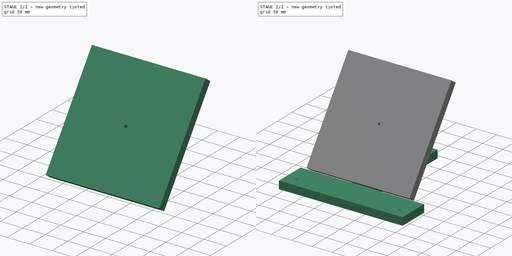
[diagram: build sequence overview — one tinted view per stage of 2, left to right]
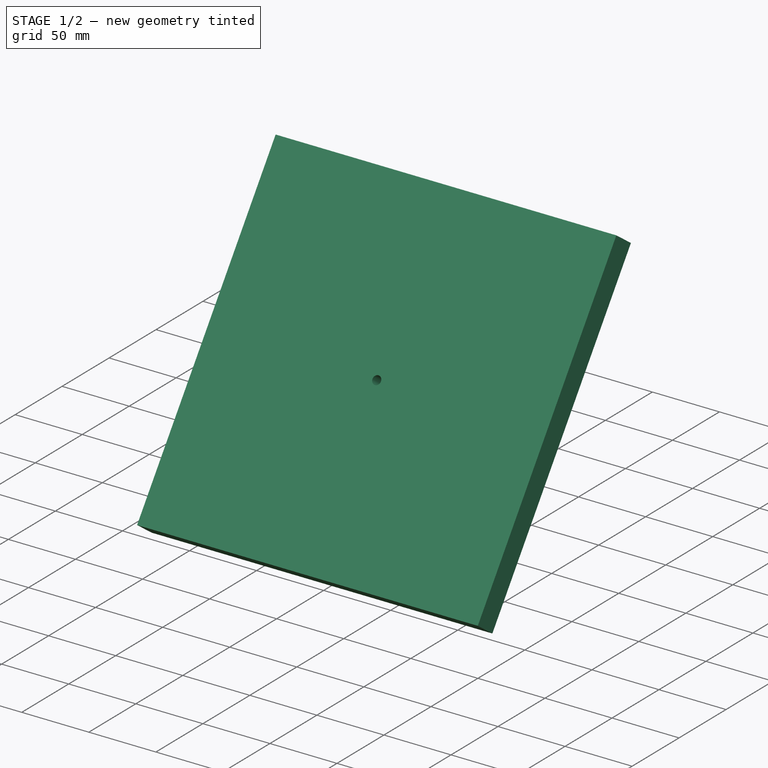
[diagram: stage 1 of 2 — iso view after this stage's code; geometry added in this stage tinted green]
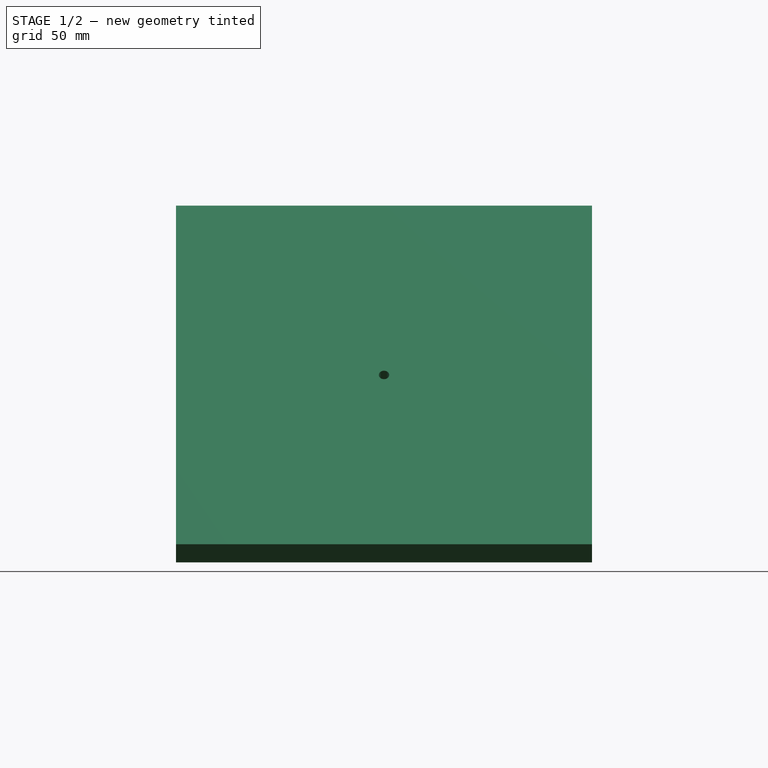
[diagram: stage 1 of 2 — front view after this stage's code; geometry added in this stage tinted green]
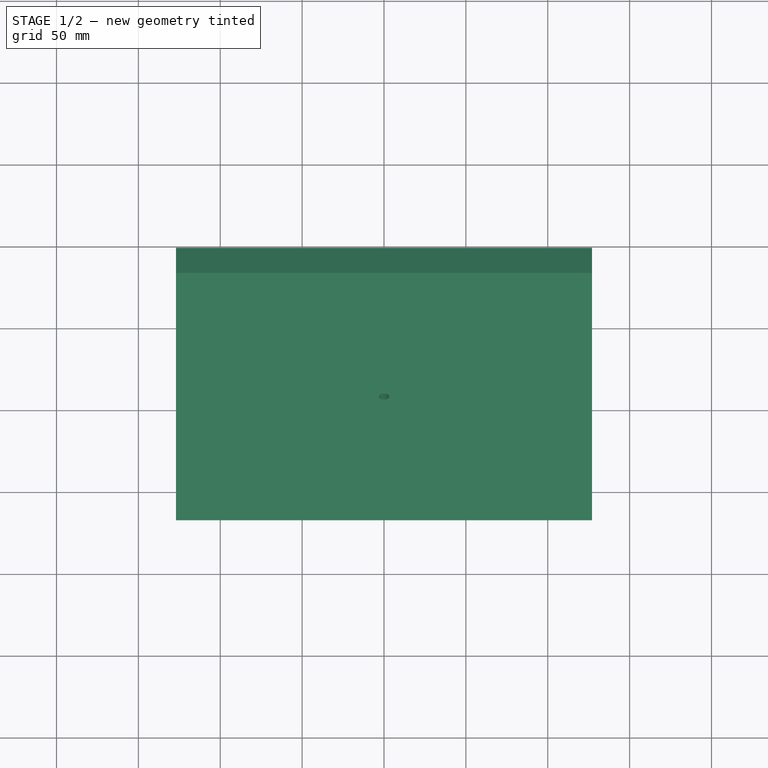
[diagram: stage 1 of 2 — top view after this stage's code; geometry added in this stage tinted green]
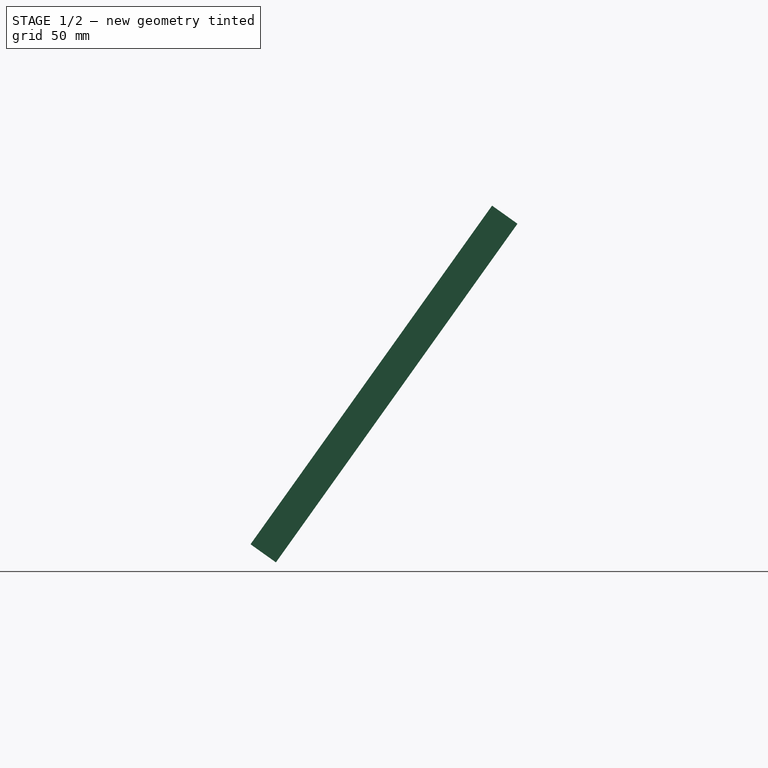
[diagram: stage 1 of 2 — right view after this stage's code; geometry added in this stage tinted green]
FCSTD DOCUMENT  (FreeCAD 0.19R24291 (Git))
Label: PST_BaseAdj
License: All rights reserved
LicenseURL: http://en.wikipedia.org/wiki/All_rights_reserved
objects: Sketcher::SketchObject×4, PartDesign::Pad×2, PartDesign::Body×2, PartDesign::Pocket×2
note: 14 computed .brp shape members not serialized (recipe doc carries the construction recipe); baked Part::Feature solids carry a one-line shape summary decoded from their .brp

FEATURE [Sketcher::SketchObject] Sketch
  AttachmentOffset = pos=(0,-27.94,104.14) rot=(1,0,0;0.951204rad)
  FullyConstrained = true
  MapMode = 5
  Placement = pos=(0,-27.94,104.14) rot=(1,0,0;0.951204rad)
  Support = -> [XY_Plane]
  sketch-geometry (4):
    g0: LineSegment StartX=-127 StartY=127 StartZ=0 EndX=127 EndY=127 EndZ=0
    g1: LineSegment StartX=127 StartY=127 StartZ=0 EndX=127 EndY=-127 EndZ=0
    g2: LineSegment StartX=127 StartY=-127 StartZ=0 EndX=-127 EndY=-127 EndZ=0
    g3: LineSegment StartX=-127 StartY=-127 StartZ=0 EndX=-127 EndY=127 EndZ=0
  constraints (11):
    c: Coincident(g0,g1)
    c: Coincident(g1,g2)
    c: Coincident(g2,g3)
    c: Coincident(g3,g0)
    c: Horizontal(g0)
    c: Horizontal(g2)
    c: Vertical(g1)
    c: Vertical(g3)
    c: Symmetric(g0,g1,g-1)
    c: DistanceX(g0,g0) = 254
    c: Equal(g3,g0)
FEATURE [PartDesign::Pad] Pad  label="PadPlatform"
  Direction = (1,1,1)
  Length = 19.05
  Length2 = 99.9998
  Profile = -> Sketch
  Type = 0
FEATURE [PartDesign::Body] Body001  label="BodyFeet"
  Group = -> [Sketch002,Pad001]
  Origin = -> Origin001
  Tip = -> Pad001
FEATURE [Sketcher::SketchObject] Sketch003
  ExternalGeometry = -> [Pad]
  FullyConstrained = true
  MapMode = 5
  Placement = pos=(0,-83.2602,59.389) rot=(1,0,0;0.951204rad)
  Support = -> [Pad]
  sketch-geometry (1):
    g0: Circle CenterX=-4.4e-15 CenterY=68.5571 CenterZ=0 NormalX=0 NormalY=0 NormalZ=1 AngleXU=0 Radius=3.175
  constraints (2):
    c: Symmetric(g-3,g-5,g0)
    c: Diameter(g0) = 6.35
FEATURE [PartDesign::Pocket] Pocket  label="PocketPin"
  BaseFeature = -> Pad
  Length = 5.0038
  Length2 = 99.9998
  Profile = -> Sketch003
  Type = 1
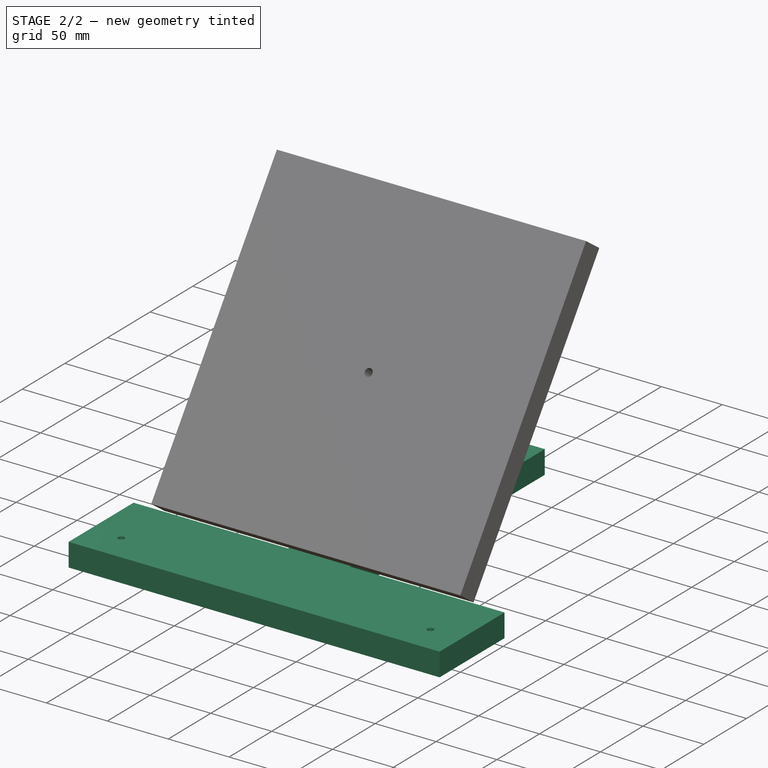
[diagram: stage 2 of 2 — iso view after this stage's code; geometry added in this stage tinted green]
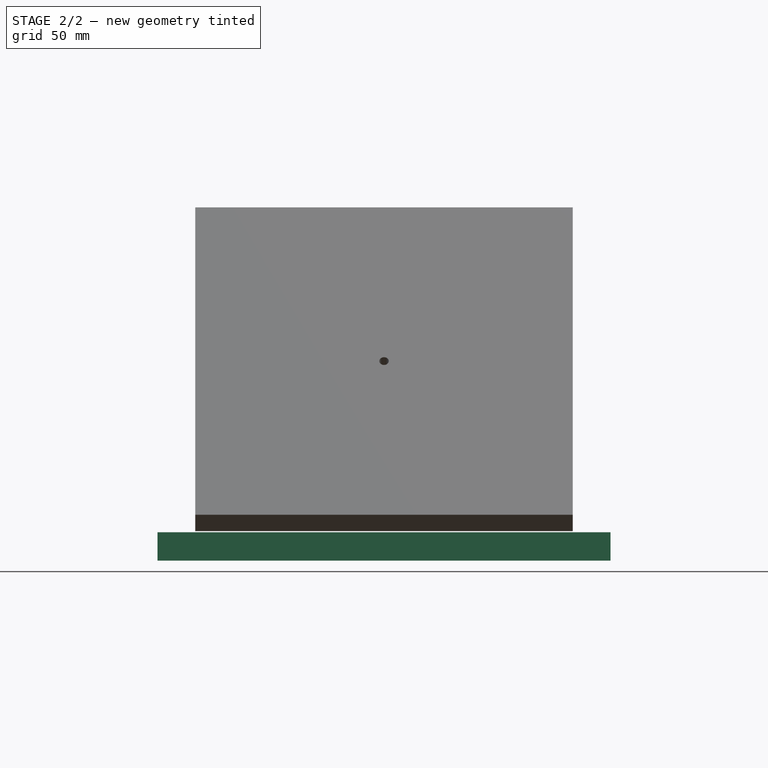
[diagram: stage 2 of 2 — front view after this stage's code; geometry added in this stage tinted green]
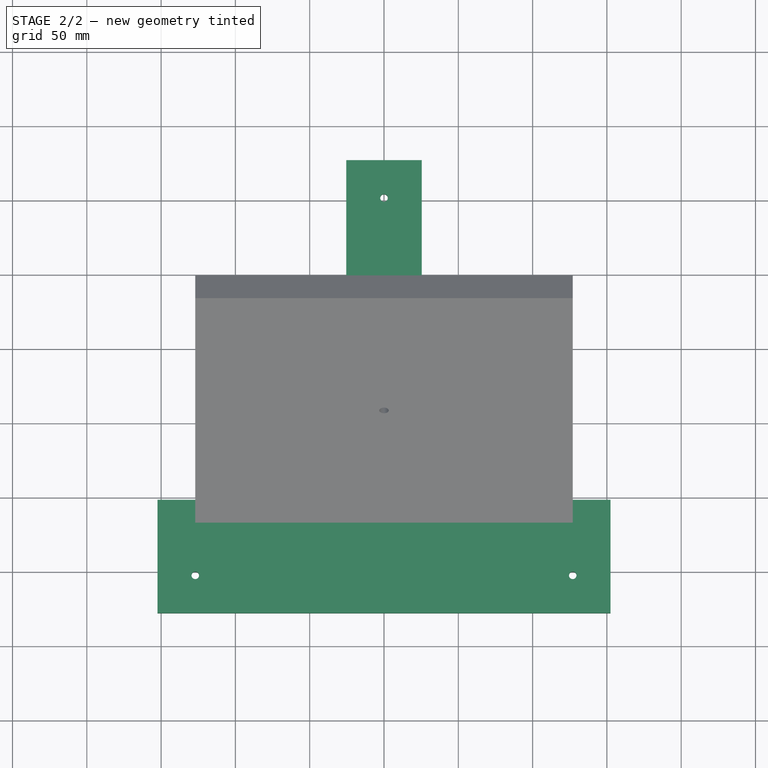
[diagram: stage 2 of 2 — top view after this stage's code; geometry added in this stage tinted green]
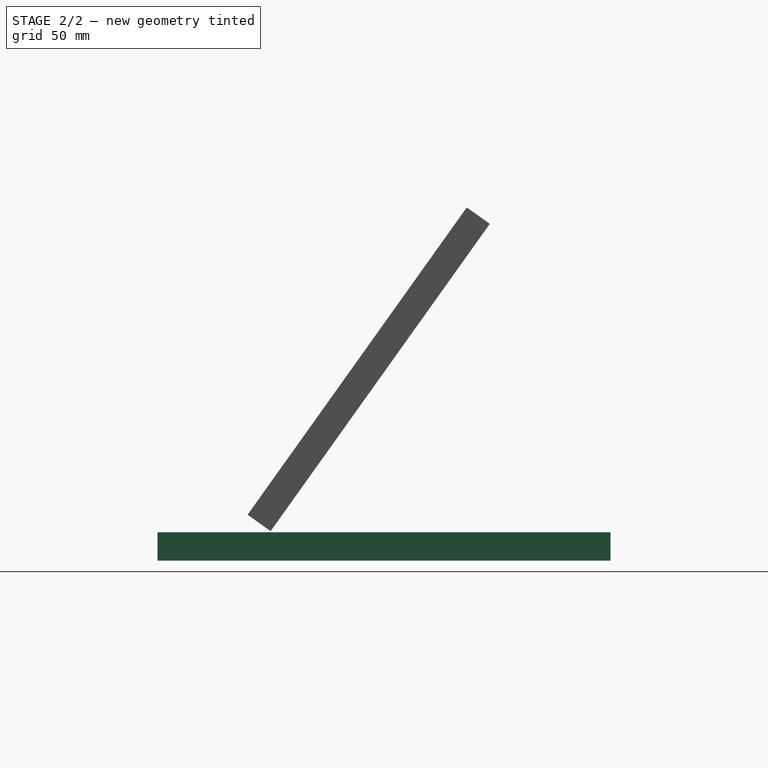
[diagram: stage 2 of 2 — right view after this stage's code; geometry added in this stage tinted green]
FEATURE [Sketcher::SketchObject] Sketch002
  AttachmentOffset = pos=(0,0,-19.05) rot=(0,0,1;0rad)
  FullyConstrained = true
  MapMode = 5
  Placement = pos=(0,0,-19.05) rot=(0,0,1;0rad)
  Support = -> [XY_Plane001]
  sketch-geometry (15):
    g0: LineSegment StartX=-152.4 StartY=-101.6 StartZ=0 EndX=-25.4 EndY=-101.6 EndZ=0
    g1: LineSegment StartX=152.4 StartY=-101.6 StartZ=0 EndX=152.4 EndY=-177.8 EndZ=0
    g2: LineSegment StartX=152.4 StartY=-177.8 StartZ=0 EndX=-152.4 EndY=-177.8 EndZ=0
    g3: LineSegment StartX=-152.4 StartY=-177.8 StartZ=0 EndX=-152.4 EndY=-101.6 EndZ=0
    g4: LineSegment StartX=-152.4 StartY=-177.8 StartZ=0 EndX=152.4 EndY=-177.8 EndZ=0
    g5: LineSegment StartX=152.4 StartY=-177.8 StartZ=0 EndX=152.4 EndY=-101.6 EndZ=0
    g6: LineSegment StartX=152.4 StartY=-101.6 StartZ=0 EndX=25.4 EndY=-101.6 EndZ=0
    g7: LineSegment StartX=25.4 StartY=-101.6 StartZ=0 EndX=25.4 EndY=127 EndZ=0
    g8: LineSegment StartX=25.4 StartY=127 StartZ=0 EndX=-25.4 EndY=127 EndZ=0
    g9: LineSegment StartX=-25.4 StartY=127 StartZ=0 EndX=-25.4 EndY=-101.6 EndZ=0
    g10: LineSegment StartX=-25.4 StartY=-101.6 StartZ=0 EndX=-152.4 EndY=-101.6 EndZ=0
    g11: LineSegment StartX=-152.4 StartY=-101.6 StartZ=0 EndX=-152.4 EndY=-177.8 EndZ=0
    g12: Circle CenterX=-127 CenterY=-152.4 CenterZ=0 NormalX=0 NormalY=0 NormalZ=1 AngleXU=0 Radius=2.5527
    g13: Circle CenterX=127 CenterY=-152.4 CenterZ=0 NormalX=0 NormalY=0 NormalZ=1 AngleXU=0 Radius=2.5527
    g14: Circle CenterX=0 CenterY=101.6 CenterZ=0 NormalX=0 NormalY=0 NormalZ=1 AngleXU=0 Radius=2.5527
  constraints (39):
    c: Coincident(g1,g2)
    c: Coincident(g2,g3)
    c: Coincident(g3,g0)
    c: Horizontal(g0)
    c: Vertical(g1)
    c: Vertical(g3)
    c: Coincident(g2,g4)
    c: Coincident(g4,g1)
    c: Coincident(g4,g5)
    c: Coincident(g5,g1)
    c: Coincident(g5,g6)
    c: Coincident(g7,g8)
    c: Coincident(g8,g9)
    c: Coincident(g9,g0)
    c: Coincident(g9,g10)
    c: Coincident(g10,g0)
    c: Coincident(g10,g11)
    c: Coincident(g11,g4)
    c: Horizontal(g8)
    c: Vertical(g9)
    c: Vertical(g7)
    c: Horizontal(g6)
    c: Equal(g10,g6)
    c: Coincident(g7,g6)
    c: Horizontal(g9,g6)
    c: Symmetric(g4,g4,g-2)
    c: DistanceX(g4,g4) = 304.8
    c: DistanceY(g5,g5) = 76.2
    c: DistanceY(g6,g7) = 228.6
    c: DistanceY(g-1,g7) = 127
    c: Equal(g12,g13)
    c: Diameter(g13) = 5.1054
    c: Symmetric(g12,g13,g-2)
    c: DistanceY(g4,g12) = 25.4
    c: DistanceX(g12,g-1) = 127
    c: PointOnObject(g14,g-2)
    c: DistanceY(g14,g7) = 25.4
    c: Equal(g14,g12)
    c: DistanceX(g8,g8) = 50.8
FEATURE [PartDesign::Pad] Pad001
  Direction = (1,1,1)
  Length = 19.05
  Length2 = 99.9998
  Profile = -> Sketch002
  Type = 0
FEATURE [Sketcher::SketchObject] Sketch004
  ExternalGeometry = -> [Pocket]
  FullyConstrained = true
  MapMode = 5
  Placement = pos=(0,-67.7513,48.3266) rot=(0,0.889017,0.457874;3.14159rad)
  Support = -> [Pocket]
  sketch-geometry (1):
    g0: Circle CenterX=0 CenterY=68.5571 CenterZ=0 NormalX=0 NormalY=0 NormalZ=1 AngleXU=0 Radius=7.62
  constraints (2):
    c: Coincident(g0,g-3)
    c: Diameter(g0) = 15.24
FEATURE [PartDesign::Pocket] Pocket001
  BaseFeature = -> Pocket
  Length = 6.35
  Length2 = 99.9998
  Profile = -> Sketch004
  Type = 0
FEATURE [PartDesign::Body] Body  label="BodyPlatform"
  Group = -> [Sketch,Pad,Sketch003,Pocket,Sketch004,Pocket001]
  Origin = -> Origin
  Tip = -> Pocket001
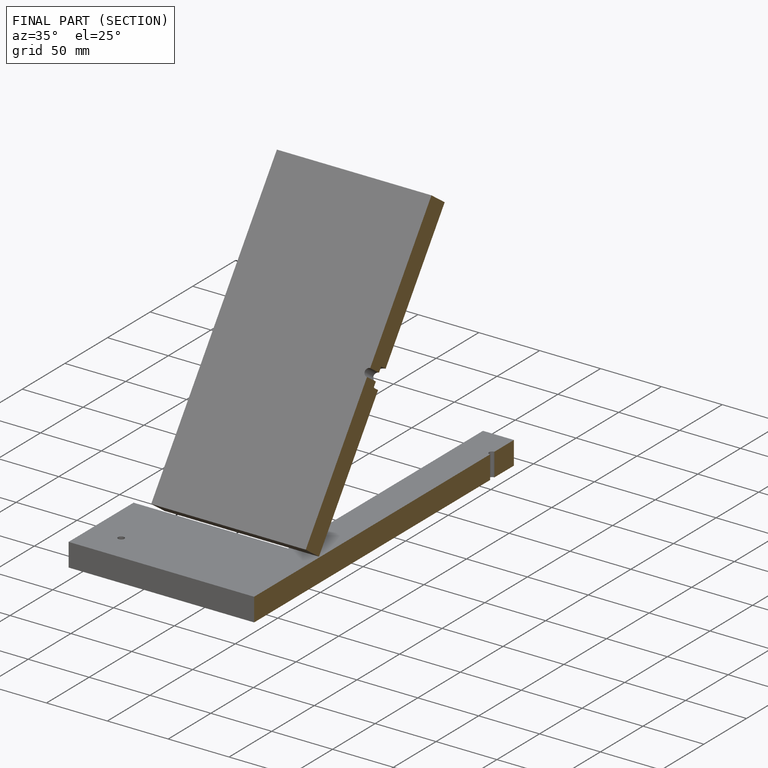
[diagram: finished part — half-section view (interior)]
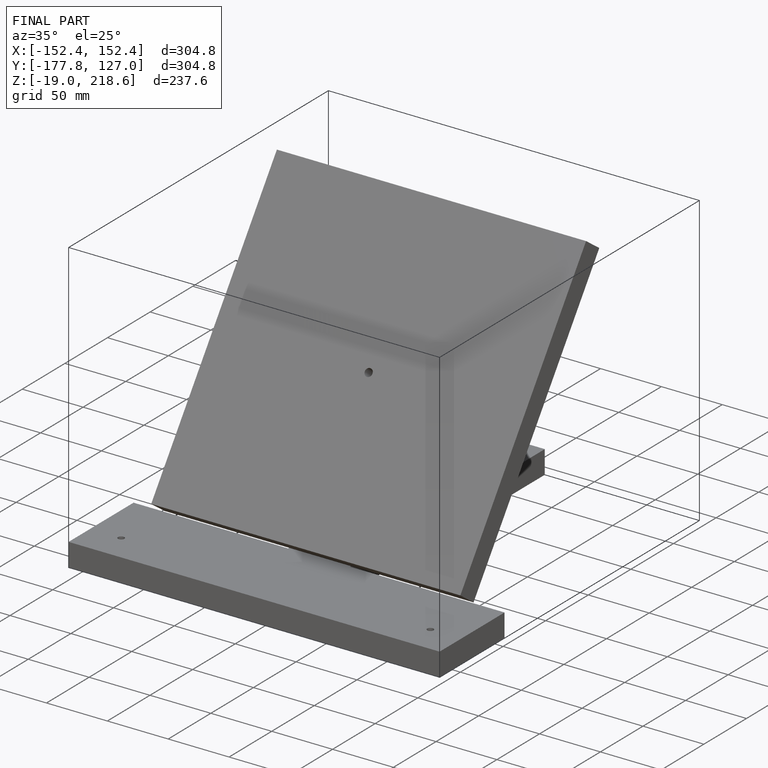
[diagram: finished part — iso view with bounding-box wireframe]
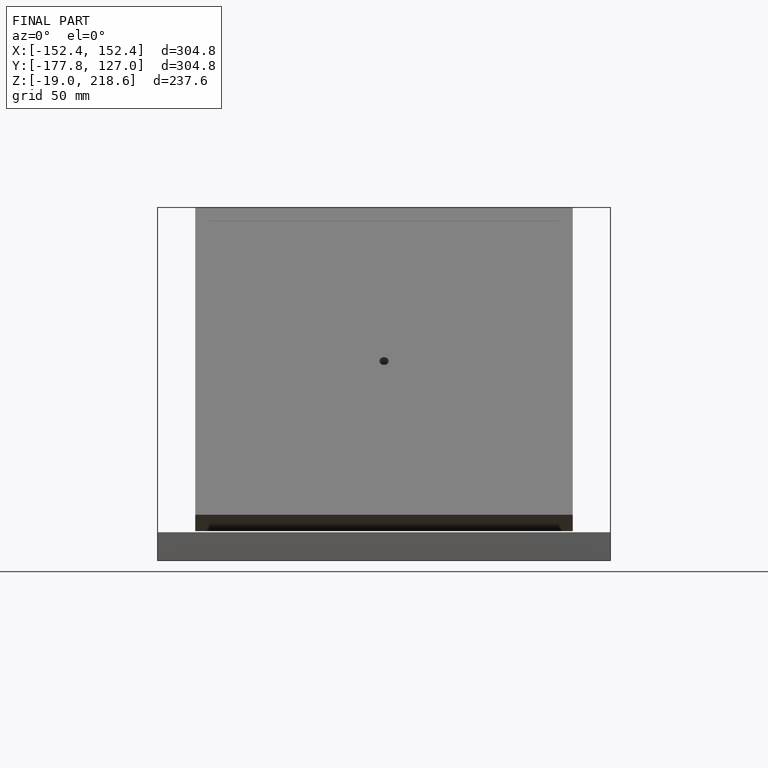
[diagram: finished part — front view with bounding-box wireframe]
